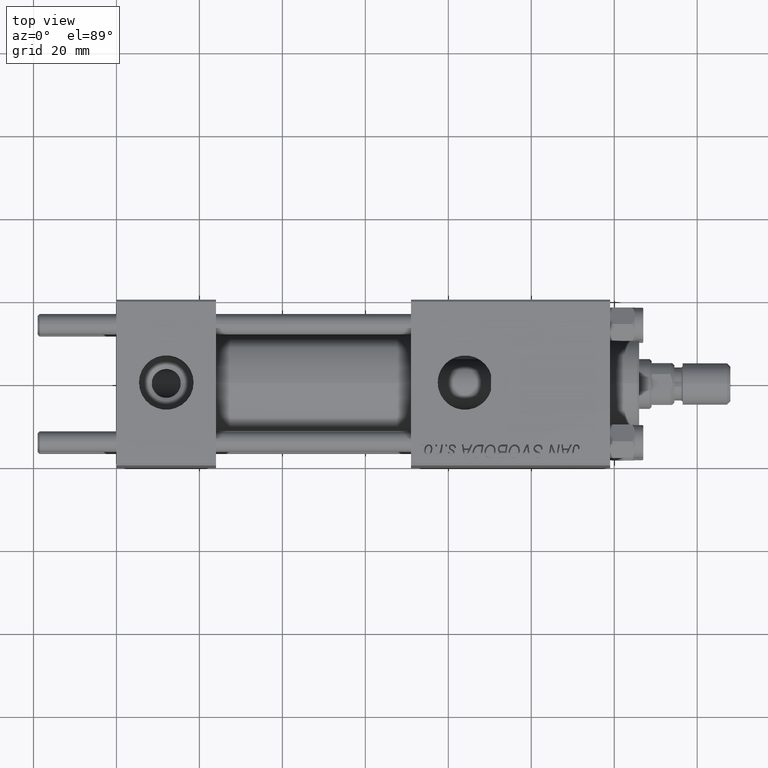
[diagram: clean part render]
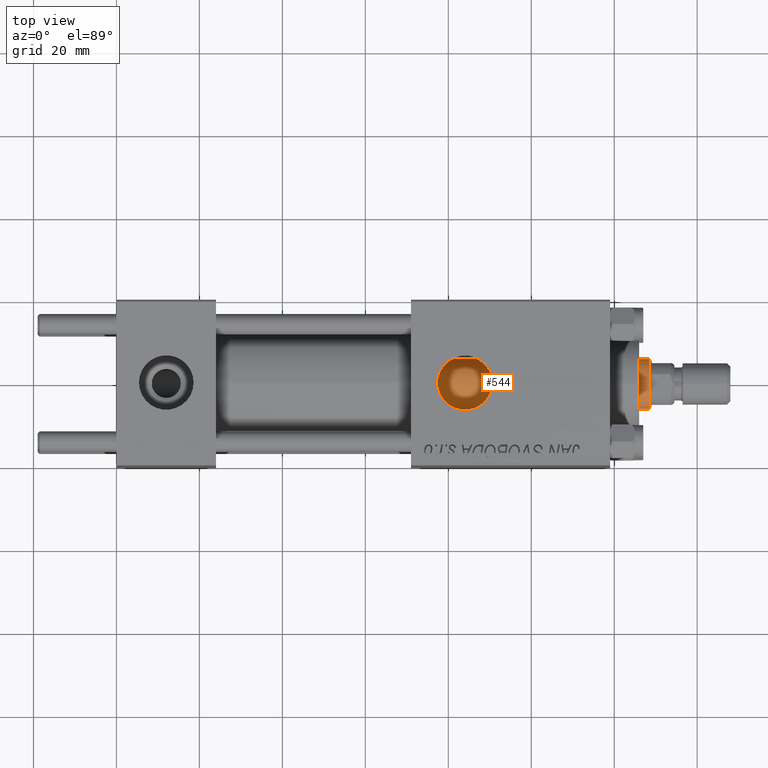
[diagram: same view with one face highlighted and labeled with its STEP entity id]
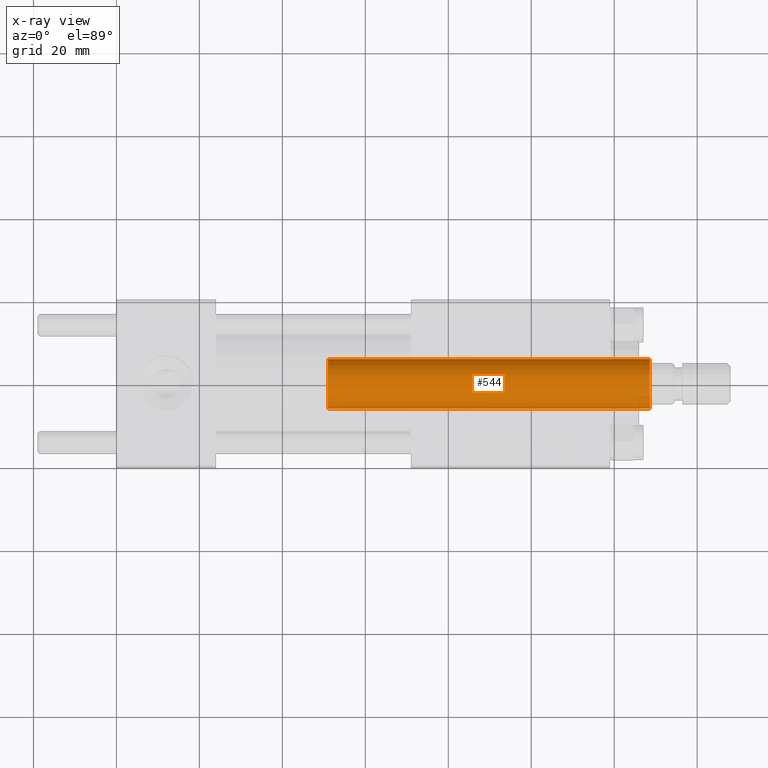
[diagram: x-ray of the same camera — body ghosted, the highlighted face saturated]
A machine part, top view. The second image highlights one B-rep face of the part: STEP entity #544.
The next image is the same camera in x-ray: the body ghosted, the highlighted face saturated — about 1% of this face is hidden behind the body in this view.
In plain terms, the highlighted cylindrical surface (edge-blend (fillet) strip) has radius 6 mm, axis along (-1, 0, 0).
Its self-contained STEP definition (entity closure, byte-faithful):
#544 = ADVANCED_FACE ( 'NONE', ( #14629 ), #6746, .T. ) ;
#4404 = CARTESIAN_POINT ( 'NONE',  ( 6.000000000000000888, 7.347880794884120722E-16, 27.00000000000000000 ) ) ;
#5391 = CIRCLE ( 'NONE', #8632, 6.000000000000000888 ) ;
#6746 = CYLINDRICAL_SURFACE ( 'NONE', #42262, 6.000000000000000888 ) ;
#6884 = AXIS2_PLACEMENT_3D ( 'NONE', #7183, #30542, #49358 ) ;
#7183 = CARTESIAN_POINT ( 'NONE',  ( 0.000000000000000000, 0.000000000000000000, 104.5000000000000142 ) ) ;
#7249 = CARTESIAN_POINT ( 'NONE',  ( 0.000000000000000000, 0.000000000000000000, 105.0000000000000000 ) ) ;
#8632 = AXIS2_PLACEMENT_3D ( 'NONE', #19504, #50247, #26879 ) ;
#9034 = LINE ( 'NONE', #47394, #50108 ) ;
#11171 = VERTEX_POINT ( 'NONE', #4404 ) ;
#11488 = EDGE_LOOP ( 'NONE', ( #16862, #46488, #22220, #39137 ) ) ;
#12202 = EDGE_CURVE ( 'NONE', #25776, #11171, #30590, .T. ) ;
#13368 = DIRECTION ( 'NONE',  ( -0.000000000000000000, -0.000000000000000000, -1.000000000000000000 ) ) ;
#13584 = EDGE_CURVE ( 'NONE', #25776, #45240, #19843, .T. ) ;
#14386 = DIRECTION ( 'NONE',  ( -0.000000000000000000, -0.000000000000000000, -1.000000000000000000 ) ) ;
#14629 = FACE_OUTER_BOUND ( 'NONE', #11488, .T. ) ;
#16862 = ORIENTED_EDGE ( 'NONE', *, *, #12202, .F. ) ;
#18036 = EDGE_CURVE ( 'NONE', #20166, #11171, #5391, .T. ) ;
#19504 = CARTESIAN_POINT ( 'NONE',  ( 0.000000000000000000, 0.000000000000000000, 27.00000000000000000 ) ) ;
#19843 = CIRCLE ( 'NONE', #6884, 6.000000000000000888 ) ;
#20166 = VERTEX_POINT ( 'NONE', #41564 ) ;
#22220 = ORIENTED_EDGE ( 'NONE', *, *, #46570, .T. ) ;
#25776 = VERTEX_POINT ( 'NONE', #46699 ) ;
#26879 = DIRECTION ( 'NONE',  ( 1.000000000000000000, 0.000000000000000000, 0.000000000000000000 ) ) ;
#30542 = DIRECTION ( 'NONE',  ( 0.000000000000000000, 0.000000000000000000, -1.000000000000000000 ) ) ;
#30590 = LINE ( 'NONE', #46082, #44116 ) ;
#33406 = DIRECTION ( 'NONE',  ( -0.000000000000000000, -0.000000000000000000, -1.000000000000000000 ) ) ;
#33674 = DIRECTION ( 'NONE',  ( -1.000000000000000000, 0.000000000000000000, 0.000000000000000000 ) ) ;
#36437 = CARTESIAN_POINT ( 'NONE',  ( -6.000000000000000888, 0.000000000000000000, 104.5000000000000142 ) ) ;
#39137 = ORIENTED_EDGE ( 'NONE', *, *, #18036, .T. ) ;
#41564 = CARTESIAN_POINT ( 'NONE',  ( -6.000000000000000888, 0.000000000000000000, 27.00000000000000000 ) ) ;
#42262 = AXIS2_PLACEMENT_3D ( 'NONE', #7249, #14386, #33674 ) ;
#44116 = VECTOR ( 'NONE', #33406, 1000.000000000000000 ) ;
#45240 = VERTEX_POINT ( 'NONE', #36437 ) ;
#46082 = CARTESIAN_POINT ( 'NONE',  ( 6.000000000000000888, 7.347880794884120722E-16, 105.0000000000000000 ) ) ;
#46488 = ORIENTED_EDGE ( 'NONE', *, *, #13584, .T. ) ;
#46570 = EDGE_CURVE ( 'NONE', #45240, #20166, #9034, .T. ) ;
#46699 = CARTESIAN_POINT ( 'NONE',  ( 6.000000000000000888, 7.347880794884120722E-16, 104.5000000000000142 ) ) ;
#47394 = CARTESIAN_POINT ( 'NONE',  ( -6.000000000000000888, 0.000000000000000000, 105.0000000000000000 ) ) ;
#49358 = DIRECTION ( 'NONE',  ( 1.000000000000000000, 0.000000000000000000, 0.000000000000000000 ) ) ;
#50108 = VECTOR ( 'NONE', #13368, 1000.000000000000000 ) ;
#50247 = DIRECTION ( 'NONE',  ( 0.000000000000000000, 0.000000000000000000, 1.000000000000000000 ) ) ;